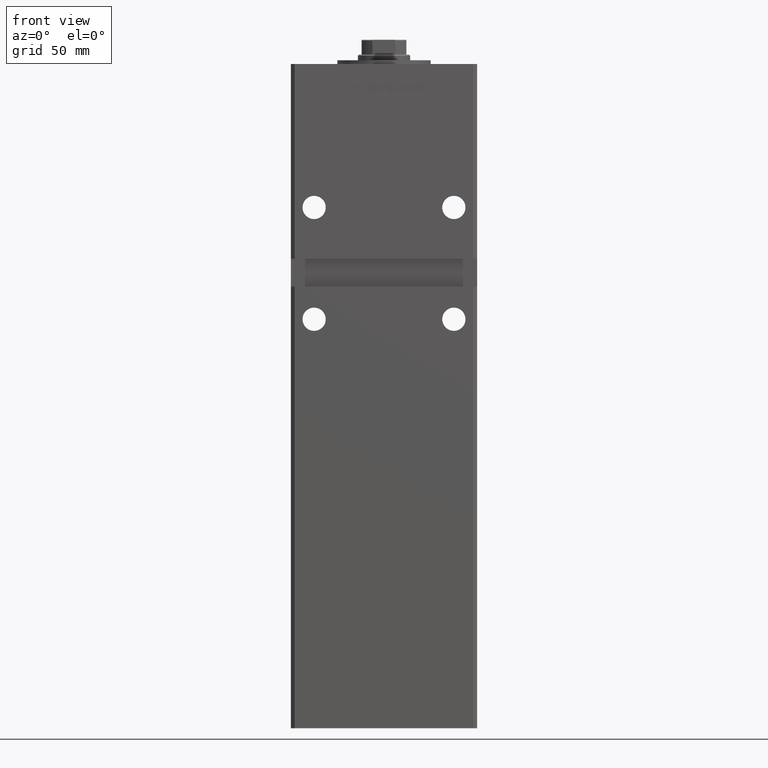
[diagram: clean part render]
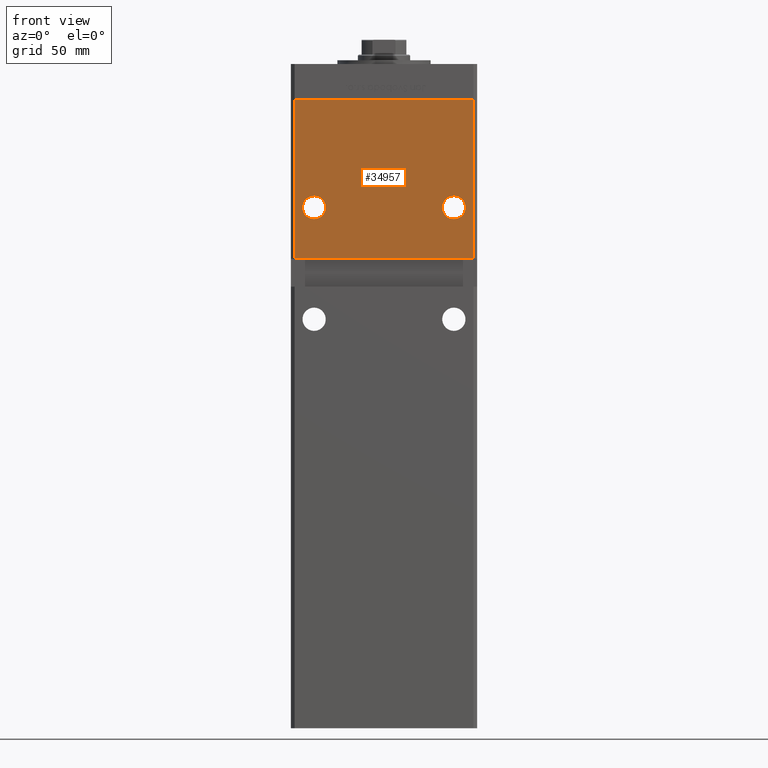
[diagram: same view with one face highlighted and labeled with its STEP entity id]
A machine part, front view. The second image highlights one B-rep face of the part: STEP entity #34957.
In plain terms, the highlighted planar face has unit normal (0, 1, 0).
Its self-contained STEP definition (entity closure, byte-faithful):
#637 = ORIENTED_EDGE ( 'NONE', *, *, #22319, .F. ) ;
#1468 = LINE ( 'NONE', #10074, #8996 ) ;
#4132 = DIRECTION ( 'NONE',  ( -0.000000000000000000, -0.000000000000000000, -1.000000000000000000 ) ) ;
#4430 = VECTOR ( 'NONE', #4132, 1000.000000000000000 ) ;
#5760 = DIRECTION ( 'NONE',  ( -1.000000000000000000, -0.000000000000000000, -0.000000000000000000 ) ) ;
#6253 = FACE_OUTER_BOUND ( 'NONE', #21398, .T. ) ;
#6931 = EDGE_CURVE ( 'NONE', #42934, #30525, #26659, .T. ) ;
#6946 = DIRECTION ( 'NONE',  ( 0.000000000000000000, 1.000000000000000000, 0.000000000000000000 ) ) ;
#7527 = CARTESIAN_POINT ( 'NONE',  ( -47.99999999999998579, -43.50000000000000000, 318.5000000000000000 ) ) ;
#8996 = VECTOR ( 'NONE', #5760, 1000.000000000000000 ) ;
#9619 = CARTESIAN_POINT ( 'NONE',  ( -37.50000000000000000, -43.50000000000000000, 254.2500000000000284 ) ) ;
#9766 = FACE_BOUND ( 'NONE', #45212, .T. ) ;
#9853 = LINE ( 'NONE', #13606, #48889 ) ;
#10074 = CARTESIAN_POINT ( 'NONE',  ( -49.99999999999998579, -43.50000000000000000, 233.0000000000000000 ) ) ;
#10569 = FACE_BOUND ( 'NONE', #52821, .T. ) ;
#11256 = CARTESIAN_POINT ( 'NONE',  ( 37.50000000000000000, -43.50000000000000000, 260.5000000000000000 ) ) ;
#11932 = ORIENTED_EDGE ( 'NONE', *, *, #30734, .T. ) ;
#13443 = ORIENTED_EDGE ( 'NONE', *, *, #6931, .T. ) ;
#13606 = CARTESIAN_POINT ( 'NONE',  ( -47.99999999999998579, -43.50000000000000000, 318.5000000000000000 ) ) ;
#14847 = DIRECTION ( 'NONE',  ( 0.000000000000000000, -0.000000000000000000, 1.000000000000000000 ) ) ;
#14882 = CARTESIAN_POINT ( 'NONE',  ( -37.50000000000000000, -43.50000000000000000, 260.5000000000000000 ) ) ;
#16129 = LINE ( 'NONE', #7527, #49863 ) ;
#16521 = CARTESIAN_POINT ( 'NONE',  ( 37.50000000000000000, -43.50000000000000000, 254.2500000000000284 ) ) ;
#16821 = EDGE_CURVE ( 'NONE', #33768, #44489, #35578, .T. ) ;
#17790 = CARTESIAN_POINT ( 'NONE',  ( -47.99999999999998579, -43.50000000000000000, 233.0000000000000000 ) ) ;
#18211 = ORIENTED_EDGE ( 'NONE', *, *, #44244, .T. ) ;
#19875 = CARTESIAN_POINT ( 'NONE',  ( 37.50000000000000000, -43.50000000000000000, 260.5000000000000000 ) ) ;
#20029 = CARTESIAN_POINT ( 'NONE',  ( -47.99999999999998579, -43.50000000000000000, 318.5000000000000000 ) ) ;
#20633 = VERTEX_POINT ( 'NONE', #41972 ) ;
#21398 = EDGE_LOOP ( 'NONE', ( #18211, #637, #37712, #25401 ) ) ;
#21460 = AXIS2_PLACEMENT_3D ( 'NONE', #19875, #32478, #27935 ) ;
#21936 = EDGE_CURVE ( 'NONE', #30525, #42934, #38183, .T. ) ;
#22118 = CARTESIAN_POINT ( 'NONE',  ( -47.99999999999998579, -43.50000000000000000, 318.5000000000000000 ) ) ;
#22297 = CARTESIAN_POINT ( 'NONE',  ( -37.50000000000000000, -43.50000000000000000, 266.7500000000000000 ) ) ;
#22319 = EDGE_CURVE ( 'NONE', #43675, #42493, #1468, .T. ) ;
#24662 = DIRECTION ( 'NONE',  ( 0.000000000000000000, 1.000000000000000000, 0.000000000000000000 ) ) ;
#25401 = ORIENTED_EDGE ( 'NONE', *, *, #41509, .F. ) ;
#26659 = CIRCLE ( 'NONE', #21460, 6.249999999999977796 ) ;
#27935 = DIRECTION ( 'NONE',  ( 0.000000000000000000, 0.000000000000000000, 1.000000000000000000 ) ) ;
#28025 = DIRECTION ( 'NONE',  ( 0.000000000000000000, 0.000000000000000000, 1.000000000000000000 ) ) ;
#28064 = LINE ( 'NONE', #40934, #4430 ) ;
#28564 = CARTESIAN_POINT ( 'NONE',  ( 37.50000000000000000, -43.50000000000000000, 266.7500000000000000 ) ) ;
#30193 = DIRECTION ( 'NONE',  ( 0.000000000000000000, 1.000000000000000000, 0.000000000000000000 ) ) ;
#30525 = VERTEX_POINT ( 'NONE', #28564 ) ;
#30734 = EDGE_CURVE ( 'NONE', #44489, #33768, #37585, .T. ) ;
#32478 = DIRECTION ( 'NONE',  ( 0.000000000000000000, 1.000000000000000000, 0.000000000000000000 ) ) ;
#32979 = AXIS2_PLACEMENT_3D ( 'NONE', #14882, #43895, #28025 ) ;
#33019 = AXIS2_PLACEMENT_3D ( 'NONE', #11256, #6946, #52352 ) ;
#33768 = VERTEX_POINT ( 'NONE', #9619 ) ;
#34255 = AXIS2_PLACEMENT_3D ( 'NONE', #22118, #30193, #14847 ) ;
#34957 = ADVANCED_FACE ( 'NONE', ( #9766, #10569, #6253 ), #51673, .F. ) ;
#35578 = CIRCLE ( 'NONE', #32979, 6.249999999999977796 ) ;
#37070 = DIRECTION ( 'NONE',  ( -0.000000000000000000, -0.000000000000000000, -1.000000000000000000 ) ) ;
#37585 = CIRCLE ( 'NONE', #45276, 6.249999999999977796 ) ;
#37712 = ORIENTED_EDGE ( 'NONE', *, *, #49902, .F. ) ;
#38183 = CIRCLE ( 'NONE', #33019, 6.249999999999977796 ) ;
#40934 = CARTESIAN_POINT ( 'NONE',  ( 47.99999999999998579, -43.50000000000000000, 318.5000000000000000 ) ) ;
#41509 = EDGE_CURVE ( 'NONE', #42929, #20633, #9853, .T. ) ;
#41856 = DIRECTION ( 'NONE',  ( 0.000000000000000000, 0.000000000000000000, 1.000000000000000000 ) ) ;
#41972 = CARTESIAN_POINT ( 'NONE',  ( 47.99999999999998579, -43.50000000000000000, 318.5000000000000000 ) ) ;
#42493 = VERTEX_POINT ( 'NONE', #17790 ) ;
#42738 = ORIENTED_EDGE ( 'NONE', *, *, #21936, .T. ) ;
#42929 = VERTEX_POINT ( 'NONE', #20029 ) ;
#42934 = VERTEX_POINT ( 'NONE', #16521 ) ;
#42990 = ORIENTED_EDGE ( 'NONE', *, *, #16821, .T. ) ;
#43675 = VERTEX_POINT ( 'NONE', #52087 ) ;
#43895 = DIRECTION ( 'NONE',  ( 0.000000000000000000, 1.000000000000000000, 0.000000000000000000 ) ) ;
#44244 = EDGE_CURVE ( 'NONE', #42929, #42493, #16129, .T. ) ;
#44489 = VERTEX_POINT ( 'NONE', #22297 ) ;
#45212 = EDGE_LOOP ( 'NONE', ( #42738, #13443 ) ) ;
#45276 = AXIS2_PLACEMENT_3D ( 'NONE', #45602, #24662, #41856 ) ;
#45602 = CARTESIAN_POINT ( 'NONE',  ( -37.50000000000000000, -43.50000000000000000, 260.5000000000000000 ) ) ;
#48889 = VECTOR ( 'NONE', #50165, 1000.000000000000000 ) ;
#49863 = VECTOR ( 'NONE', #37070, 1000.000000000000000 ) ;
#49902 = EDGE_CURVE ( 'NONE', #20633, #43675, #28064, .T. ) ;
#50165 = DIRECTION ( 'NONE',  ( 1.000000000000000000, 0.000000000000000000, 0.000000000000000000 ) ) ;
#51673 = PLANE ( 'NONE',  #34255 ) ;
#52087 = CARTESIAN_POINT ( 'NONE',  ( 47.99999999999995737, -43.50000000000000000, 233.0000000000000000 ) ) ;
#52352 = DIRECTION ( 'NONE',  ( 0.000000000000000000, 0.000000000000000000, 1.000000000000000000 ) ) ;
#52821 = EDGE_LOOP ( 'NONE', ( #11932, #42990 ) ) ;